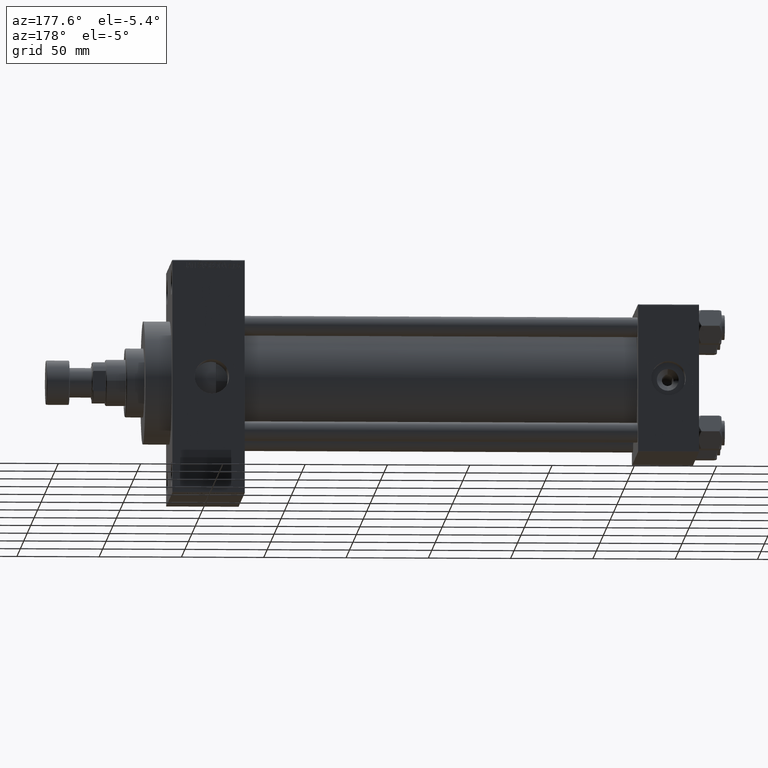
[diagram: clean part render]
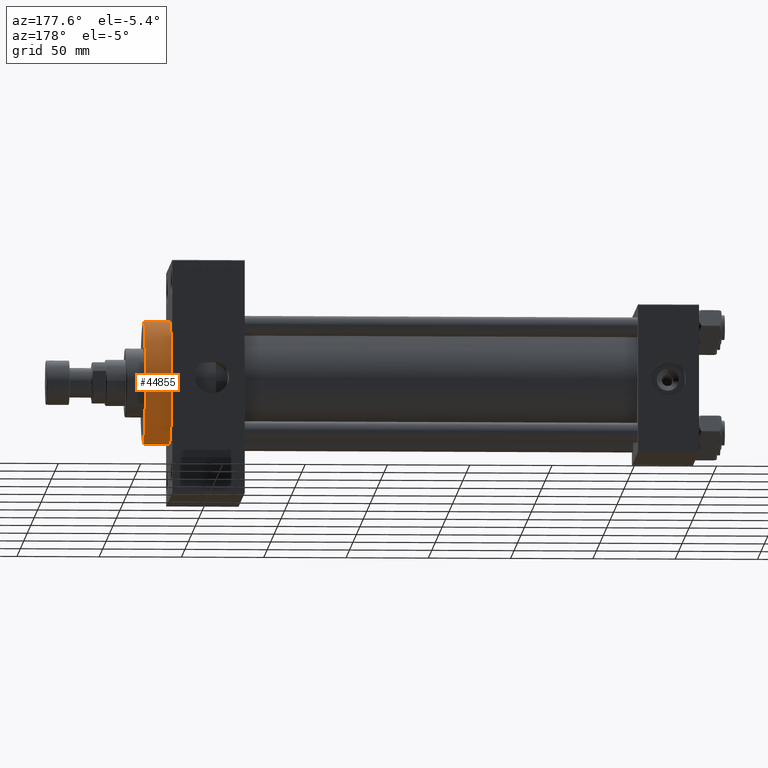
[diagram: same view with one face highlighted and labeled with its STEP entity id]
A machine part, auxiliary view. The second image highlights one B-rep face of the part: STEP entity #44855.
In plain terms, the highlighted cylindrical surface (partial cylindrical patch) has radius 37.5 mm, axis along (-1, -0, -0).
Its self-contained STEP definition (entity closure, byte-faithful):
#409 = ORIENTED_EDGE ( 'NONE', *, *, #39542, .T. ) ;
#2399 = DIRECTION ( 'NONE',  ( 0.000000000000000000, 0.000000000000000000, -1.000000000000000000 ) ) ;
#3064 = VERTEX_POINT ( 'NONE', #8578 ) ;
#3184 = VECTOR ( 'NONE', #38997, 1000.000000000000000 ) ;
#4429 = EDGE_LOOP ( 'NONE', ( #37390, #409, #10596, #36817 ) ) ;
#4488 = CYLINDRICAL_SURFACE ( 'NONE', #36924, 37.50000000000000711 ) ;
#7812 = EDGE_CURVE ( 'NONE', #45841, #30742, #8561, .T. ) ;
#8561 = CIRCLE ( 'NONE', #42449, 37.50000000000000711 ) ;
#8578 = CARTESIAN_POINT ( 'NONE',  ( 335.9999999999999432, 4.592425496802575156E-15, -37.50000000000000711 ) ) ;
#9997 = CARTESIAN_POINT ( 'NONE',  ( 335.9999999999999432, 0.000000000000000000, 0.000000000000000000 ) ) ;
#10596 = ORIENTED_EDGE ( 'NONE', *, *, #7812, .T. ) ;
#12677 = CARTESIAN_POINT ( 'NONE',  ( 335.9999999999999432, 0.000000000000000000, 0.000000000000000000 ) ) ;
#13554 = CARTESIAN_POINT ( 'NONE',  ( 319.9999999999999432, 4.592425496802575156E-15, -37.50000000000000711 ) ) ;
#13653 = CARTESIAN_POINT ( 'NONE',  ( 335.9999999999999432, 0.000000000000000000, 37.50000000000000711 ) ) ;
#14725 = CIRCLE ( 'NONE', #30133, 37.50000000000000711 ) ;
#16821 = DIRECTION ( 'NONE',  ( 1.000000000000000000, 0.000000000000000000, 0.000000000000000000 ) ) ;
#17790 = CARTESIAN_POINT ( 'NONE',  ( 319.9999999999999432, 0.000000000000000000, 0.000000000000000000 ) ) ;
#21364 = DIRECTION ( 'NONE',  ( -1.000000000000000000, -0.000000000000000000, -0.000000000000000000 ) ) ;
#21987 = VERTEX_POINT ( 'NONE', #30470 ) ;
#23750 = DIRECTION ( 'NONE',  ( -1.000000000000000000, -0.000000000000000000, -0.000000000000000000 ) ) ;
#25306 = CARTESIAN_POINT ( 'NONE',  ( 319.9999999999999432, 0.000000000000000000, 37.50000000000000711 ) ) ;
#30133 = AXIS2_PLACEMENT_3D ( 'NONE', #9997, #46895, #42579 ) ;
#30470 = CARTESIAN_POINT ( 'NONE',  ( 335.9999999999999432, 0.000000000000000000, 37.50000000000000711 ) ) ;
#30742 = VERTEX_POINT ( 'NONE', #25306 ) ;
#33897 = FACE_OUTER_BOUND ( 'NONE', #4429, .T. ) ;
#34144 = DIRECTION ( 'NONE',  ( 0.000000000000000000, 0.000000000000000000, 1.000000000000000000 ) ) ;
#34611 = EDGE_CURVE ( 'NONE', #21987, #30742, #43090, .T. ) ;
#35010 = EDGE_CURVE ( 'NONE', #3064, #21987, #14725, .T. ) ;
#36791 = LINE ( 'NONE', #46962, #39645 ) ;
#36817 = ORIENTED_EDGE ( 'NONE', *, *, #34611, .F. ) ;
#36924 = AXIS2_PLACEMENT_3D ( 'NONE', #12677, #23750, #34144 ) ;
#37390 = ORIENTED_EDGE ( 'NONE', *, *, #35010, .F. ) ;
#38997 = DIRECTION ( 'NONE',  ( -1.000000000000000000, -0.000000000000000000, -0.000000000000000000 ) ) ;
#39542 = EDGE_CURVE ( 'NONE', #3064, #45841, #36791, .T. ) ;
#39645 = VECTOR ( 'NONE', #21364, 1000.000000000000000 ) ;
#42449 = AXIS2_PLACEMENT_3D ( 'NONE', #17790, #16821, #2399 ) ;
#42579 = DIRECTION ( 'NONE',  ( 0.000000000000000000, 0.000000000000000000, -1.000000000000000000 ) ) ;
#43090 = LINE ( 'NONE', #13653, #3184 ) ;
#44855 = ADVANCED_FACE ( 'NONE', ( #33897 ), #4488, .T. ) ;
#45841 = VERTEX_POINT ( 'NONE', #13554 ) ;
#46895 = DIRECTION ( 'NONE',  ( 1.000000000000000000, 0.000000000000000000, 0.000000000000000000 ) ) ;
#46962 = CARTESIAN_POINT ( 'NONE',  ( 335.9999999999999432, 4.592425496802575156E-15, -37.50000000000000711 ) ) ;